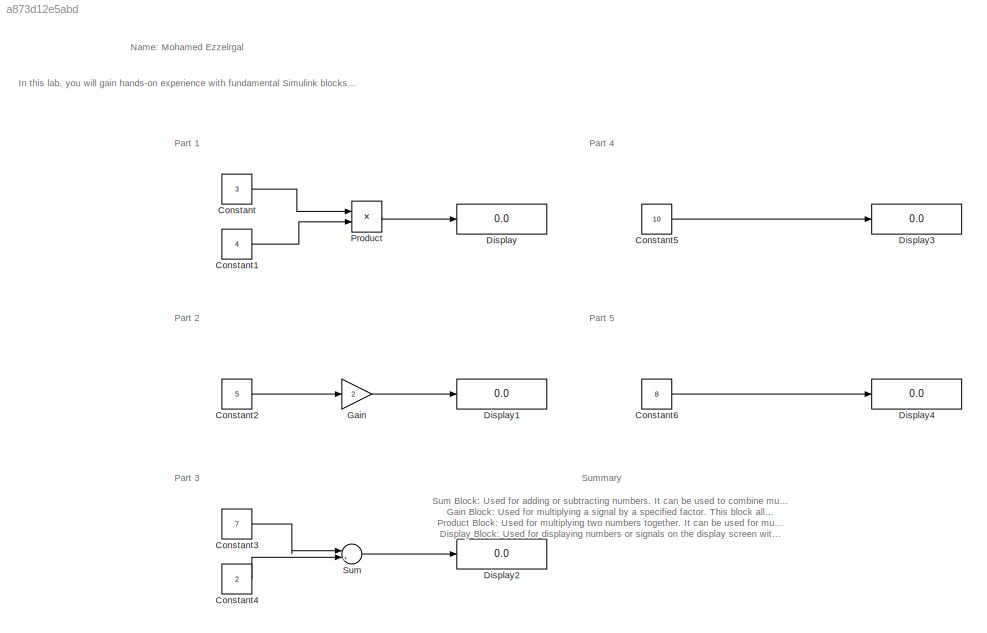
MODEL slx_a873d12e5abd
KIND model
CONFIG AbsTol = auto
CONFIG EnableMultiTasking = off
CONFIG FixedStep = auto
CONFIG MaxStep = 0.01
CONFIG MinStep = auto
CONFIG RelTol = 1e-3
CONFIG SampleTimeConstraint = Unconstrained
CONFIG SolverName = VariableStepAuto
CONFIG StartTime = 0.0
CONFIG StopTime = 10.0
BLOCK [Constant] Constant
  Value = 3
BLOCK [Constant] Constant1
  Value = 4
BLOCK [Constant] Constant2
  Value = 5
BLOCK [Constant] Constant3
  Value = 7
BLOCK [Constant] Constant4
  Value = 2
BLOCK [Constant] Constant5
  Value = 10
BLOCK [Constant] Constant6
  Value = 8
BLOCK [Display] Display
  Decimation = 1
BLOCK [Display] Display1
  Decimation = 1
BLOCK [Display] Display2
  Decimation = 1
BLOCK [Display] Display3
  Decimation = 2
BLOCK [Display] Display4
  Decimation = 2
BLOCK [Gain] Gain
  Gain = 2
BLOCK [Product] Product
BLOCK [Sum] Sum
  Inputs = |++
ANNOTATION (root): Name : Mohamed Ezzelrgal
ANNOTATION (root): In this lab, you will gain hands-on experience with fundamental Simulink blocks and learn how to create a simple simulation model.
ANNOTATION (root): Sum Block: Used for adding or subtracting numbers. It can be used to combine multiple signals or perform simple addition and subtraction operations. Gain Block : Used for multiplying a signal by a specified factor. This block allows you to adjust a certain value to amplify or attenuate the signal. Product Block: Used for multiplying two numbers together. It can be used for multiplication operation...<+227ch>
ANNOTATION (root): Part 1
ANNOTATION (root): Part 2
ANNOTATION (root): Part 3
ANNOTATION (root): Part 4
ANNOTATION (root): Part 5
ANNOTATION (root): Summary
LINE Constant1:1 -> Product:2
LINE Constant2:1 -> Gain:1
LINE Constant3:1 -> Sum:1
LINE Constant4:1 -> Sum:2
LINE Constant5:1 -> Display3:1
LINE Constant6:1 -> Display4:1
LINE Constant:1 -> Product:1
LINE Gain:1 -> Display1:1
LINE Product:1 -> Display:1
LINE Sum:1 -> Display2:1
